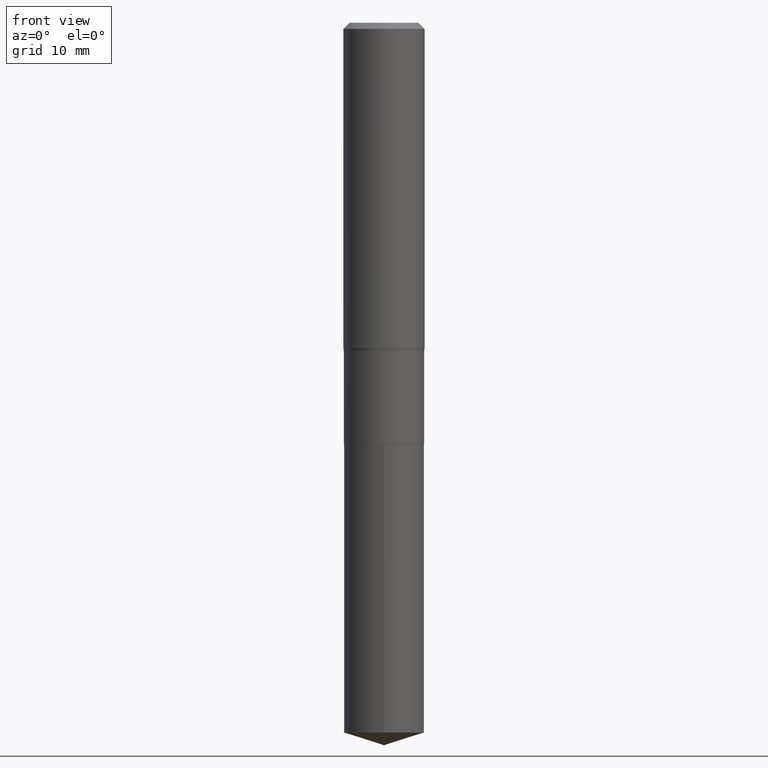
[diagram: clean part render]
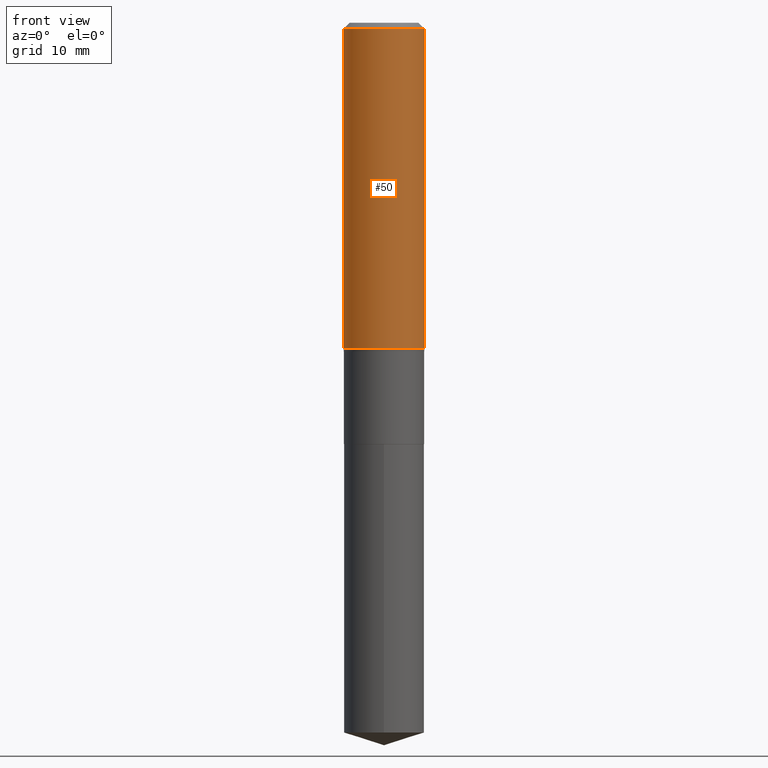
[diagram: same view with one face highlighted and labeled with its STEP entity id]
A machine part, front view. The second image highlights one B-rep face of the part: STEP entity #50.
In plain terms, the highlighted cylindrical surface (partial cylindrical patch) has radius 5 mm, axis along (-0, 0, 1).
Its self-contained STEP definition (entity closure, byte-faithful):
#7 = AXIS2_PLACEMENT_3D ( 'NONE', #107, #331, #24 ) ;
#10 = CARTESIAN_POINT ( 'NONE',  ( 0.1968500000000001082, -1.374596203102542397E-15, 9.598753983154305062E-30 ) ) ;
#13 = VECTOR ( 'NONE', #248, 39.37007874015748143 ) ;
#24 = DIRECTION ( 'NONE',  ( 1.000000000000000000, -6.982962677686269866E-15, 0.000000000000000000 ) ) ;
#36 = ORIENTED_EDGE ( 'NONE', *, *, #66, .F. ) ;
#50 = ADVANCED_FACE ( 'NONE', ( #224 ), #384, .T. ) ;
#51 = AXIS2_PLACEMENT_3D ( 'NONE', #222, #383, #160 ) ;
#66 = EDGE_CURVE ( 'NONE', #112, #81, #77, .T. ) ;
#77 = CIRCLE ( 'NONE', #458, 0.1968500000000000250 ) ;
#81 = VERTEX_POINT ( 'NONE', #316 ) ;
#85 = DIRECTION ( 'NONE',  ( -2.445468806185136877E-29, 3.491481338843145188E-15, 1.000000000000000000 ) ) ;
#107 = CARTESIAN_POINT ( 'NONE',  ( 3.858137931593122664E-29, -5.508398453813880195E-15, -1.577668020886232814 ) ) ;
#112 = VERTEX_POINT ( 'NONE', #437 ) ;
#130 = ORIENTED_EDGE ( 'NONE', *, *, #347, .F. ) ;
#152 = ORIENTED_EDGE ( 'NONE', *, *, #478, .T. ) ;
#157 = CARTESIAN_POINT ( 'NONE',  ( 0.1968500000000002470, -6.882994656916424959E-15, -1.577668020886232814 ) ) ;
#160 = DIRECTION ( 'NONE',  ( 1.000000000000000000, -6.982962677686266711E-15, 4.876176775795935793E-29 ) ) ;
#193 = VERTEX_POINT ( 'NONE', #157 ) ;
#196 = CARTESIAN_POINT ( 'NONE',  ( 7.220858017463212989E-31, -1.030947152326917102E-16, -0.02952750000000020636 ) ) ;
#222 = CARTESIAN_POINT ( 'NONE',  ( 0.000000000000000000, 0.000000000000000000, 0.000000000000000000 ) ) ;
#224 = FACE_OUTER_BOUND ( 'NONE', #269, .T. ) ;
#248 = DIRECTION ( 'NONE',  ( -2.445468806185136877E-29, 3.491481338843145188E-15, 1.000000000000000000 ) ) ;
#269 = EDGE_LOOP ( 'NONE', ( #130, #152, #427, #36 ) ) ;
#289 = LINE ( 'NONE', #443, #13 ) ;
#304 = VECTOR ( 'NONE', #85, 39.37007874015748143 ) ;
#316 = CARTESIAN_POINT ( 'NONE',  ( 0.1968500000000000250, -1.477690918335233294E-15, -0.02952750000000020636 ) ) ;
#331 = DIRECTION ( 'NONE',  ( -2.445468806185136597E-29, 3.491481338843145583E-15, 1.000000000000000000 ) ) ;
#347 = EDGE_CURVE ( 'NONE', #406, #112, #289, .T. ) ;
#349 = EDGE_CURVE ( 'NONE', #193, #81, #433, .T. ) ;
#355 = CARTESIAN_POINT ( 'NONE',  ( -0.1968500000000002470, -4.109695078470121619E-15, -1.577668020886232814 ) ) ;
#383 = DIRECTION ( 'NONE',  ( -2.445468806185136597E-29, 3.491481338843145583E-15, 1.000000000000000000 ) ) ;
#384 = CYLINDRICAL_SURFACE ( 'NONE', #51, 0.1968500000000001082 ) ;
#406 = VERTEX_POINT ( 'NONE', #355 ) ;
#427 = ORIENTED_EDGE ( 'NONE', *, *, #349, .T. ) ;
#433 = LINE ( 'NONE', #10, #304 ) ;
#436 = DIRECTION ( 'NONE',  ( 1.000000000000000000, -6.982962677686265922E-15, 0.000000000000000000 ) ) ;
#437 = CARTESIAN_POINT ( 'NONE',  ( -0.1968500000000000250, -1.407043209179527561E-15, -0.02952750000000020636 ) ) ;
#438 = CIRCLE ( 'NONE', #7, 0.1968500000000002470 ) ;
#443 = CARTESIAN_POINT ( 'NONE',  ( -0.1968500000000001082, 1.398703375343757985E-15, -9.682923725166787881E-30 ) ) ;
#458 = AXIS2_PLACEMENT_3D ( 'NONE', #196, #463, #436 ) ;
#463 = DIRECTION ( 'NONE',  ( -2.445468806185136597E-29, 3.491481338843145583E-15, 1.000000000000000000 ) ) ;
#478 = EDGE_CURVE ( 'NONE', #406, #193, #438, .T. ) ;